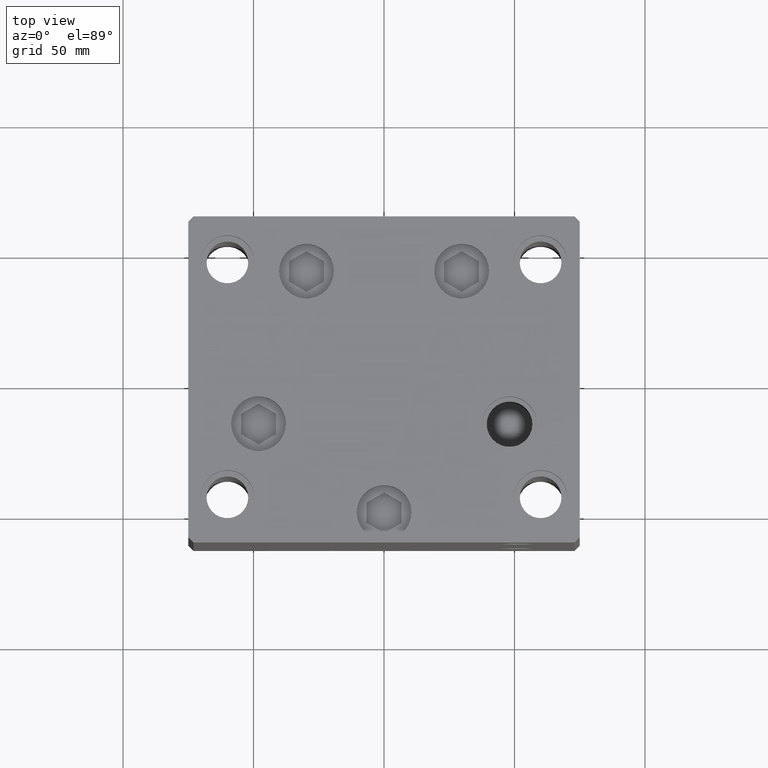
[diagram: clean part render]
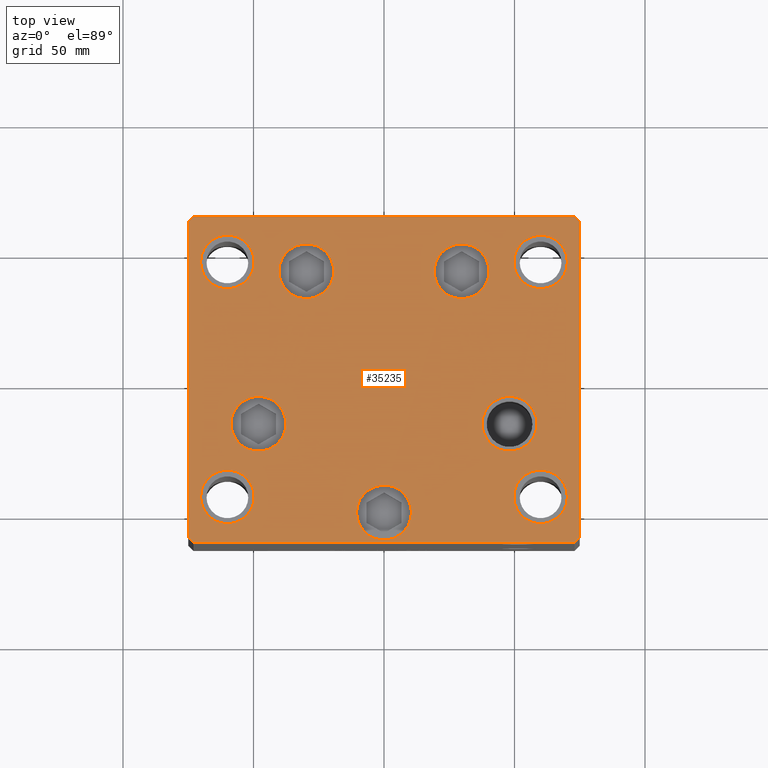
[diagram: same view with one face highlighted and labeled with its STEP entity id]
A machine part, top view. The second image highlights one B-rep face of the part: STEP entity #35235.
In plain terms, the highlighted planar face has unit normal (0, 0, 1).
Its self-contained STEP definition (entity closure, byte-faithful):
#42 = VERTEX_POINT ( 'NONE', #37654 ) ;
#71 = EDGE_LOOP ( 'NONE', ( #12995, #7733 ) ) ;
#338 = DIRECTION ( 'NONE',  ( 1.000000000000000000, 0.000000000000000000, 0.000000000000000000 ) ) ;
#650 = VERTEX_POINT ( 'NONE', #25250 ) ;
#838 = VERTEX_POINT ( 'NONE', #36072 ) ;
#1028 = CARTESIAN_POINT ( 'NONE',  ( 60.00000000000000000, 44.99999999999999289, 0.000000000000000000 ) ) ;
#1353 = AXIS2_PLACEMENT_3D ( 'NONE', #47283, #16511, #20077 ) ;
#1415 = EDGE_CURVE ( 'NONE', #49209, #22351, #33008, .T. ) ;
#1676 = DIRECTION ( 'NONE',  ( 0.000000000000000000, 0.000000000000000000, 1.000000000000000000 ) ) ;
#1791 = CARTESIAN_POINT ( 'NONE',  ( -37.58326112068522207, -17.00000000000000711, 0.000000000000000000 ) ) ;
#1874 = VERTEX_POINT ( 'NONE', #4676 ) ;
#2226 = DIRECTION ( 'NONE',  ( 0.000000000000000000, -1.000000000000000000, 0.000000000000000000 ) ) ;
#3121 = LINE ( 'NONE', #13814, #34086 ) ;
#3736 = DIRECTION ( 'NONE',  ( 0.000000000000000000, 0.000000000000000000, 1.000000000000000000 ) ) ;
#4073 = LINE ( 'NONE', #7902, #12057 ) ;
#4123 = CIRCLE ( 'NONE', #44737, 10.50000000000000178 ) ;
#4152 = CARTESIAN_POINT ( 'NONE',  ( 6.245698675651500444E-15, -51.00000000000000000, 0.000000000000000000 ) ) ;
#4394 = ORIENTED_EDGE ( 'NONE', *, *, #17084, .T. ) ;
#4676 = CARTESIAN_POINT ( 'NONE',  ( 49.75000000000000000, -44.99999999999999289, 0.000000000000000000 ) ) ;
#4681 = ORIENTED_EDGE ( 'NONE', *, *, #34577, .T. ) ;
#4755 = CARTESIAN_POINT ( 'NONE',  ( -29.73102073172060500, 41.43749999999998579, 0.000000000000000000 ) ) ;
#5249 = CARTESIAN_POINT ( 'NONE',  ( -75.00000000000001421, -60.50000000000001421, 0.000000000000000000 ) ) ;
#5288 = VERTEX_POINT ( 'NONE', #39884 ) ;
#5386 = VERTEX_POINT ( 'NONE', #49020 ) ;
#5403 = PLANE ( 'NONE',  #35171 ) ;
#5420 = EDGE_LOOP ( 'NONE', ( #12443, #18690 ) ) ;
#5508 = VERTEX_POINT ( 'NONE', #20759 ) ;
#5649 = DIRECTION ( 'NONE',  ( -0.000000000000000000, 0.000000000000000000, 1.000000000000000000 ) ) ;
#5900 = DIRECTION ( 'NONE',  ( 1.000000000000000000, 0.000000000000000000, 0.000000000000000000 ) ) ;
#6174 = DIRECTION ( 'NONE',  ( 0.000000000000000000, 0.000000000000000000, 1.000000000000000000 ) ) ;
#6183 = CARTESIAN_POINT ( 'NONE',  ( 48.08326112068522207, -16.99999999999999645, 0.000000000000000000 ) ) ;
#6674 = CIRCLE ( 'NONE', #41586, 10.50000000000000000 ) ;
#6825 = DIRECTION ( 'NONE',  ( -0.7071067811865500152, 0.7071067811865451302, 0.000000000000000000 ) ) ;
#6851 = LINE ( 'NONE', #29980, #39295 ) ;
#6867 = CARTESIAN_POINT ( 'NONE',  ( 10.50000000000000711, -51.00000000000000000, 0.000000000000000000 ) ) ;
#6946 = EDGE_CURVE ( 'NONE', #39628, #45878, #6674, .T. ) ;
#7188 = CARTESIAN_POINT ( 'NONE',  ( -29.73102073172060500, 41.43749999999998579, 0.000000000000000000 ) ) ;
#7539 = EDGE_CURVE ( 'NONE', #40012, #11205, #4123, .T. ) ;
#7644 = DIRECTION ( 'NONE',  ( 0.7071067811865463515, 0.7071067811865487940, 0.000000000000000000 ) ) ;
#7733 = ORIENTED_EDGE ( 'NONE', *, *, #7739, .T. ) ;
#7739 = EDGE_CURVE ( 'NONE', #11205, #40012, #15495, .T. ) ;
#7833 = EDGE_LOOP ( 'NONE', ( #16808, #17600, #8575, #35605, #40416, #46773, #41564, #9743 ) ) ;
#7902 = CARTESIAN_POINT ( 'NONE',  ( -75.00000000000001421, -60.50000000000001421, 0.000000000000000000 ) ) ;
#8086 = CARTESIAN_POINT ( 'NONE',  ( 19.23102073172059434, 41.43749999999999289, 0.000000000000000000 ) ) ;
#8532 = CARTESIAN_POINT ( 'NONE',  ( -48.08326112068522207, -17.00000000000000711, 0.000000000000000000 ) ) ;
#8575 = ORIENTED_EDGE ( 'NONE', *, *, #14899, .T. ) ;
#8835 = ORIENTED_EDGE ( 'NONE', *, *, #48959, .F. ) ;
#9234 = FACE_BOUND ( 'NONE', #43058, .T. ) ;
#9239 = VERTEX_POINT ( 'NONE', #5249 ) ;
#9740 = DIRECTION ( 'NONE',  ( 1.000000000000000000, 9.505334114941407284E-17, 0.000000000000000000 ) ) ;
#9743 = ORIENTED_EDGE ( 'NONE', *, *, #17576, .T. ) ;
#9858 = CARTESIAN_POINT ( 'NONE',  ( -75.00000000000001421, 60.49999999999997158, 0.000000000000000000 ) ) ;
#10426 = DIRECTION ( 'NONE',  ( -6.881547673296424104E-16, 1.000000000000000000, 0.000000000000000000 ) ) ;
#10796 = DIRECTION ( 'NONE',  ( 0.000000000000000000, -0.000000000000000000, -1.000000000000000000 ) ) ;
#11205 = VERTEX_POINT ( 'NONE', #43612 ) ;
#11773 = CARTESIAN_POINT ( 'NONE',  ( 72.99999999999992895, 62.50000000000001421, 0.000000000000000000 ) ) ;
#12020 = CARTESIAN_POINT ( 'NONE',  ( -73.00000000000001421, 62.49999999999998579, 0.000000000000000000 ) ) ;
#12057 = VECTOR ( 'NONE', #39159, 1000.000000000000114 ) ;
#12297 = EDGE_LOOP ( 'NONE', ( #31429, #28412 ) ) ;
#12366 = ORIENTED_EDGE ( 'NONE', *, *, #46403, .T. ) ;
#12443 = ORIENTED_EDGE ( 'NONE', *, *, #30276, .F. ) ;
#12798 = FACE_BOUND ( 'NONE', #28529, .T. ) ;
#12894 = VERTEX_POINT ( 'NONE', #20682 ) ;
#12995 = ORIENTED_EDGE ( 'NONE', *, *, #7539, .T. ) ;
#13048 = FACE_OUTER_BOUND ( 'NONE', #7833, .T. ) ;
#13096 = CIRCLE ( 'NONE', #25278, 10.24999999999999467 ) ;
#13503 = CARTESIAN_POINT ( 'NONE',  ( -10.49999999999999289, -51.00000000000000000, 0.000000000000000000 ) ) ;
#13814 = CARTESIAN_POINT ( 'NONE',  ( -73.00000000000001421, -62.50000000000002842, 0.000000000000000000 ) ) ;
#13887 = AXIS2_PLACEMENT_3D ( 'NONE', #30687, #3736, #30934 ) ;
#14851 = AXIS2_PLACEMENT_3D ( 'NONE', #28286, #36925, #5900 ) ;
#14899 = EDGE_CURVE ( 'NONE', #24366, #12894, #46792, .T. ) ;
#15151 = CARTESIAN_POINT ( 'NONE',  ( 70.25000000000000000, 44.99999999999999289, 0.000000000000000000 ) ) ;
#15343 = DIRECTION ( 'NONE',  ( -1.000000000000000000, -1.901066822988282689E-16, 0.000000000000000000 ) ) ;
#15424 = EDGE_CURVE ( 'NONE', #22351, #15426, #36966, .T. ) ;
#15426 = VERTEX_POINT ( 'NONE', #12020 ) ;
#15495 = CIRCLE ( 'NONE', #17113, 10.50000000000000178 ) ;
#15922 = CIRCLE ( 'NONE', #42709, 10.50000000000000178 ) ;
#16220 = DIRECTION ( 'NONE',  ( 1.000000000000000000, 0.000000000000000000, 0.000000000000000000 ) ) ;
#16257 = AXIS2_PLACEMENT_3D ( 'NONE', #35001, #46701, #23061 ) ;
#16511 = DIRECTION ( 'NONE',  ( 0.000000000000000000, 0.000000000000000000, 1.000000000000000000 ) ) ;
#16808 = ORIENTED_EDGE ( 'NONE', *, *, #21241, .T. ) ;
#17084 = EDGE_CURVE ( 'NONE', #37632, #650, #32858, .T. ) ;
#17113 = AXIS2_PLACEMENT_3D ( 'NONE', #29859, #10796, #49173 ) ;
#17266 = ORIENTED_EDGE ( 'NONE', *, *, #25407, .T. ) ;
#17361 = FACE_BOUND ( 'NONE', #30167, .T. ) ;
#17384 = DIRECTION ( 'NONE',  ( 1.000000000000000000, 0.000000000000000000, 0.000000000000000000 ) ) ;
#17576 = EDGE_CURVE ( 'NONE', #40822, #9239, #25114, .T. ) ;
#17600 = ORIENTED_EDGE ( 'NONE', *, *, #23005, .T. ) ;
#17620 = DIRECTION ( 'NONE',  ( 0.000000000000000000, 0.000000000000000000, 1.000000000000000000 ) ) ;
#18054 = LINE ( 'NONE', #33057, #49649 ) ;
#18395 = CIRCLE ( 'NONE', #28936, 10.25000000000000178 ) ;
#18463 = ORIENTED_EDGE ( 'NONE', *, *, #6946, .T. ) ;
#18690 = ORIENTED_EDGE ( 'NONE', *, *, #46860, .F. ) ;
#18698 = AXIS2_PLACEMENT_3D ( 'NONE', #8532, #24032, #39542 ) ;
#19087 = AXIS2_PLACEMENT_3D ( 'NONE', #4755, #20273, #16220 ) ;
#19247 = DIRECTION ( 'NONE',  ( 1.000000000000000000, 0.000000000000000000, 0.000000000000000000 ) ) ;
#19288 = ORIENTED_EDGE ( 'NONE', *, *, #35479, .F. ) ;
#19611 = CARTESIAN_POINT ( 'NONE',  ( -60.00000000000000000, 45.00000000000000000, 0.000000000000000000 ) ) ;
#19668 = DIRECTION ( 'NONE',  ( 0.000000000000000000, -0.000000000000000000, -1.000000000000000000 ) ) ;
#19828 = EDGE_CURVE ( 'NONE', #5386, #838, #31425, .T. ) ;
#20077 = DIRECTION ( 'NONE',  ( 1.000000000000000000, 0.000000000000000000, 0.000000000000000000 ) ) ;
#20273 = DIRECTION ( 'NONE',  ( 0.000000000000000000, -0.000000000000000000, -1.000000000000000000 ) ) ;
#20275 = AXIS2_PLACEMENT_3D ( 'NONE', #19611, #35609, #23665 ) ;
#20359 = VERTEX_POINT ( 'NONE', #35269 ) ;
#20642 = VERTEX_POINT ( 'NONE', #15151 ) ;
#20672 = CARTESIAN_POINT ( 'NONE',  ( 0.000000000000000000, 0.000000000000000000, 0.000000000000000000 ) ) ;
#20682 = CARTESIAN_POINT ( 'NONE',  ( 75.00000000000001421, -60.50000000000000711, 0.000000000000000000 ) ) ;
#20755 = EDGE_LOOP ( 'NONE', ( #4394, #48530 ) ) ;
#20759 = CARTESIAN_POINT ( 'NONE',  ( 37.58326112068522207, -16.99999999999999645, 0.000000000000000000 ) ) ;
#21241 = EDGE_CURVE ( 'NONE', #9239, #23282, #4073, .T. ) ;
#21685 = DIRECTION ( 'NONE',  ( 1.000000000000000000, 0.000000000000000000, 0.000000000000000000 ) ) ;
#21702 = AXIS2_PLACEMENT_3D ( 'NONE', #47464, #1676, #47715 ) ;
#22178 = AXIS2_PLACEMENT_3D ( 'NONE', #1028, #32050, #47561 ) ;
#22351 = VERTEX_POINT ( 'NONE', #24392 ) ;
#22867 = DIRECTION ( 'NONE',  ( 0.000000000000000000, -0.000000000000000000, -1.000000000000000000 ) ) ;
#22901 = DIRECTION ( 'NONE',  ( 0.000000000000000000, 0.000000000000000000, 1.000000000000000000 ) ) ;
#23005 = EDGE_CURVE ( 'NONE', #23282, #24366, #3121, .T. ) ;
#23061 = DIRECTION ( 'NONE',  ( 1.000000000000000000, 0.000000000000000000, 0.000000000000000000 ) ) ;
#23282 = VERTEX_POINT ( 'NONE', #43984 ) ;
#23292 = CIRCLE ( 'NONE', #1353, 10.24999999999999467 ) ;
#23665 = DIRECTION ( 'NONE',  ( 1.000000000000000000, 0.000000000000000000, 0.000000000000000000 ) ) ;
#23885 = EDGE_CURVE ( 'NONE', #838, #5386, #36529, .T. ) ;
#23970 = AXIS2_PLACEMENT_3D ( 'NONE', #7188, #27500, #26762 ) ;
#24032 = DIRECTION ( 'NONE',  ( 0.000000000000000000, -0.000000000000000000, -1.000000000000000000 ) ) ;
#24366 = VERTEX_POINT ( 'NONE', #30919 ) ;
#24392 = CARTESIAN_POINT ( 'NONE',  ( 72.99999999999992895, 62.50000000000001421, 0.000000000000000000 ) ) ;
#24565 = EDGE_CURVE ( 'NONE', #27314, #44739, #41410, .T. ) ;
#25114 = LINE ( 'NONE', #9858, #36929 ) ;
#25250 = CARTESIAN_POINT ( 'NONE',  ( -19.23102073172060145, 41.43749999999998579, 0.000000000000000000 ) ) ;
#25278 = AXIS2_PLACEMENT_3D ( 'NONE', #45074, #6174, #21685 ) ;
#25407 = EDGE_CURVE ( 'NONE', #5508, #5288, #39020, .T. ) ;
#26069 = CARTESIAN_POINT ( 'NONE',  ( 70.25000000000000000, -44.99999999999999289, 0.000000000000000000 ) ) ;
#26141 = CARTESIAN_POINT ( 'NONE',  ( 74.99999999999992895, 60.50000000000002842, 0.000000000000000000 ) ) ;
#26762 = DIRECTION ( 'NONE',  ( 1.000000000000000000, 0.000000000000000000, 0.000000000000000000 ) ) ;
#26954 = CARTESIAN_POINT ( 'NONE',  ( 73.00000000000001421, -62.50000000000001421, 0.000000000000000000 ) ) ;
#27314 = VERTEX_POINT ( 'NONE', #30255 ) ;
#27331 = EDGE_CURVE ( 'NONE', #12894, #49209, #18054, .T. ) ;
#27500 = DIRECTION ( 'NONE',  ( 0.000000000000000000, -0.000000000000000000, -1.000000000000000000 ) ) ;
#27846 = EDGE_CURVE ( 'NONE', #1874, #31433, #13096, .T. ) ;
#28286 = CARTESIAN_POINT ( 'NONE',  ( 6.245698675651500444E-15, -51.00000000000000000, 0.000000000000000000 ) ) ;
#28412 = ORIENTED_EDGE ( 'NONE', *, *, #27846, .F. ) ;
#28529 = EDGE_LOOP ( 'NONE', ( #4681, #18463 ) ) ;
#28550 = FACE_BOUND ( 'NONE', #5420, .T. ) ;
#28690 = CIRCLE ( 'NONE', #31141, 10.24999999999999467 ) ;
#28936 = AXIS2_PLACEMENT_3D ( 'NONE', #49842, #22901, #34087 ) ;
#29706 = CIRCLE ( 'NONE', #37862, 10.50000000000000178 ) ;
#29859 = CARTESIAN_POINT ( 'NONE',  ( 29.73102073172059789, 41.43749999999999289, 0.000000000000000000 ) ) ;
#29980 = CARTESIAN_POINT ( 'NONE',  ( -73.00000000000001421, 62.49999999999998579, 0.000000000000000000 ) ) ;
#30167 = EDGE_LOOP ( 'NONE', ( #39540, #37014 ) ) ;
#30255 = CARTESIAN_POINT ( 'NONE',  ( -58.58326112068522207, -17.00000000000000711, 0.000000000000000000 ) ) ;
#30276 = EDGE_CURVE ( 'NONE', #20359, #46107, #40676, .T. ) ;
#30687 = CARTESIAN_POINT ( 'NONE',  ( -59.99999999999999289, -45.00000000000000000, 0.000000000000000000 ) ) ;
#30735 = EDGE_LOOP ( 'NONE', ( #8835, #19288 ) ) ;
#30919 = CARTESIAN_POINT ( 'NONE',  ( 73.00000000000001421, -62.50000000000001421, 0.000000000000000000 ) ) ;
#30934 = DIRECTION ( 'NONE',  ( 1.000000000000000000, 0.000000000000000000, 0.000000000000000000 ) ) ;
#31141 = AXIS2_PLACEMENT_3D ( 'NONE', #36942, #17620, #48625 ) ;
#31425 = CIRCLE ( 'NONE', #21702, 10.25000000000000178 ) ;
#31429 = ORIENTED_EDGE ( 'NONE', *, *, #36161, .F. ) ;
#31433 = VERTEX_POINT ( 'NONE', #26069 ) ;
#32050 = DIRECTION ( 'NONE',  ( 0.000000000000000000, 0.000000000000000000, 1.000000000000000000 ) ) ;
#32719 = CIRCLE ( 'NONE', #22178, 10.24999999999999467 ) ;
#32858 = CIRCLE ( 'NONE', #19087, 10.50000000000000178 ) ;
#33008 = LINE ( 'NONE', #26141, #41190 ) ;
#33057 = CARTESIAN_POINT ( 'NONE',  ( 75.00000000000001421, -60.50000000000000711, 0.000000000000000000 ) ) ;
#33112 = FACE_BOUND ( 'NONE', #30735, .T. ) ;
#34086 = VECTOR ( 'NONE', #9740, 1000.000000000000000 ) ;
#34087 = DIRECTION ( 'NONE',  ( 1.000000000000000000, 0.000000000000000000, 0.000000000000000000 ) ) ;
#34577 = EDGE_CURVE ( 'NONE', #45878, #39628, #36750, .T. ) ;
#35001 = CARTESIAN_POINT ( 'NONE',  ( 48.08326112068522207, -16.99999999999999645, 0.000000000000000000 ) ) ;
#35171 = AXIS2_PLACEMENT_3D ( 'NONE', #20672, #5649, #44067 ) ;
#35235 = ADVANCED_FACE ( 'NONE', ( #46385, #36933, #9234, #12798, #47870, #36419, #28550, #17361, #33112, #13048 ), #5403, .T. ) ;
#35269 = CARTESIAN_POINT ( 'NONE',  ( -49.74999999999998579, -45.00000000000000000, 0.000000000000000000 ) ) ;
#35479 = EDGE_CURVE ( 'NONE', #42, #20642, #32719, .T. ) ;
#35605 = ORIENTED_EDGE ( 'NONE', *, *, #27331, .T. ) ;
#35609 = DIRECTION ( 'NONE',  ( 0.000000000000000000, 0.000000000000000000, 1.000000000000000000 ) ) ;
#36072 = CARTESIAN_POINT ( 'NONE',  ( -49.74999999999999289, 45.00000000000000000, 0.000000000000000000 ) ) ;
#36161 = EDGE_CURVE ( 'NONE', #31433, #1874, #28690, .T. ) ;
#36419 = FACE_BOUND ( 'NONE', #12297, .T. ) ;
#36529 = CIRCLE ( 'NONE', #20275, 10.25000000000000178 ) ;
#36750 = CIRCLE ( 'NONE', #14851, 10.50000000000000000 ) ;
#36925 = DIRECTION ( 'NONE',  ( 0.000000000000000000, -0.000000000000000000, -1.000000000000000000 ) ) ;
#36929 = VECTOR ( 'NONE', #2226, 1000.000000000000000 ) ;
#36933 = FACE_BOUND ( 'NONE', #71, .T. ) ;
#36942 = CARTESIAN_POINT ( 'NONE',  ( 60.00000000000000000, -44.99999999999999289, 0.000000000000000000 ) ) ;
#36966 = LINE ( 'NONE', #11773, #37707 ) ;
#37014 = ORIENTED_EDGE ( 'NONE', *, *, #19828, .F. ) ;
#37632 = VERTEX_POINT ( 'NONE', #40979 ) ;
#37654 = CARTESIAN_POINT ( 'NONE',  ( 49.75000000000000000, 44.99999999999999289, 0.000000000000000000 ) ) ;
#37707 = VECTOR ( 'NONE', #15343, 1000.000000000000000 ) ;
#37862 = AXIS2_PLACEMENT_3D ( 'NONE', #43371, #38572, #19247 ) ;
#37979 = EDGE_CURVE ( 'NONE', #15426, #40822, #6851, .T. ) ;
#38380 = DIRECTION ( 'NONE',  ( 1.000000000000000000, 0.000000000000000000, 0.000000000000000000 ) ) ;
#38500 = ORIENTED_EDGE ( 'NONE', *, *, #43083, .T. ) ;
#38572 = DIRECTION ( 'NONE',  ( 0.000000000000000000, -0.000000000000000000, -1.000000000000000000 ) ) ;
#39020 = CIRCLE ( 'NONE', #16257, 10.50000000000000178 ) ;
#39159 = DIRECTION ( 'NONE',  ( 0.7071067811865451302, -0.7071067811865500152, 0.000000000000000000 ) ) ;
#39295 = VECTOR ( 'NONE', #45498, 1000.000000000000114 ) ;
#39540 = ORIENTED_EDGE ( 'NONE', *, *, #23885, .F. ) ;
#39542 = DIRECTION ( 'NONE',  ( 1.000000000000000000, 0.000000000000000000, 0.000000000000000000 ) ) ;
#39628 = VERTEX_POINT ( 'NONE', #6867 ) ;
#39884 = CARTESIAN_POINT ( 'NONE',  ( 58.58326112068522207, -16.99999999999999645, 0.000000000000000000 ) ) ;
#40012 = VERTEX_POINT ( 'NONE', #8086 ) ;
#40182 = ORIENTED_EDGE ( 'NONE', *, *, #24565, .T. ) ;
#40416 = ORIENTED_EDGE ( 'NONE', *, *, #1415, .T. ) ;
#40676 = CIRCLE ( 'NONE', #13887, 10.25000000000000178 ) ;
#40822 = VERTEX_POINT ( 'NONE', #48545 ) ;
#40979 = CARTESIAN_POINT ( 'NONE',  ( -40.23102073172060500, 41.43749999999998579, 0.000000000000000000 ) ) ;
#41190 = VECTOR ( 'NONE', #6825, 1000.000000000000114 ) ;
#41410 = CIRCLE ( 'NONE', #18698, 10.50000000000000178 ) ;
#41564 = ORIENTED_EDGE ( 'NONE', *, *, #37979, .T. ) ;
#41586 = AXIS2_PLACEMENT_3D ( 'NONE', #4152, #19668, #338 ) ;
#42709 = AXIS2_PLACEMENT_3D ( 'NONE', #6183, #48389, #17384 ) ;
#43058 = EDGE_LOOP ( 'NONE', ( #17266, #12366 ) ) ;
#43083 = EDGE_CURVE ( 'NONE', #44739, #27314, #29706, .T. ) ;
#43092 = CARTESIAN_POINT ( 'NONE',  ( 74.99999999999992895, 60.50000000000002842, 0.000000000000000000 ) ) ;
#43371 = CARTESIAN_POINT ( 'NONE',  ( -48.08326112068522207, -17.00000000000000711, 0.000000000000000000 ) ) ;
#43609 = EDGE_LOOP ( 'NONE', ( #40182, #38500 ) ) ;
#43612 = CARTESIAN_POINT ( 'NONE',  ( 40.23102073172059789, 41.43749999999999289, 0.000000000000000000 ) ) ;
#43984 = CARTESIAN_POINT ( 'NONE',  ( -73.00000000000001421, -62.50000000000002842, 0.000000000000000000 ) ) ;
#44067 = DIRECTION ( 'NONE',  ( 1.000000000000000000, 0.000000000000000000, 0.000000000000000000 ) ) ;
#44517 = EDGE_CURVE ( 'NONE', #650, #37632, #45910, .T. ) ;
#44698 = CARTESIAN_POINT ( 'NONE',  ( -70.25000000000000000, -45.00000000000000000, 0.000000000000000000 ) ) ;
#44737 = AXIS2_PLACEMENT_3D ( 'NONE', #46755, #22867, #38380 ) ;
#44739 = VERTEX_POINT ( 'NONE', #1791 ) ;
#45074 = CARTESIAN_POINT ( 'NONE',  ( 60.00000000000000000, -44.99999999999999289, 0.000000000000000000 ) ) ;
#45498 = DIRECTION ( 'NONE',  ( -0.7071067811865451302, -0.7071067811865500152, 0.000000000000000000 ) ) ;
#45878 = VERTEX_POINT ( 'NONE', #13503 ) ;
#45910 = CIRCLE ( 'NONE', #23970, 10.50000000000000178 ) ;
#46107 = VERTEX_POINT ( 'NONE', #44698 ) ;
#46385 = FACE_BOUND ( 'NONE', #20755, .T. ) ;
#46403 = EDGE_CURVE ( 'NONE', #5288, #5508, #15922, .T. ) ;
#46701 = DIRECTION ( 'NONE',  ( 0.000000000000000000, -0.000000000000000000, -1.000000000000000000 ) ) ;
#46755 = CARTESIAN_POINT ( 'NONE',  ( 29.73102073172059789, 41.43749999999999289, 0.000000000000000000 ) ) ;
#46773 = ORIENTED_EDGE ( 'NONE', *, *, #15424, .T. ) ;
#46792 = LINE ( 'NONE', #26954, #48205 ) ;
#46860 = EDGE_CURVE ( 'NONE', #46107, #20359, #18395, .T. ) ;
#47283 = CARTESIAN_POINT ( 'NONE',  ( 60.00000000000000000, 44.99999999999999289, 0.000000000000000000 ) ) ;
#47464 = CARTESIAN_POINT ( 'NONE',  ( -60.00000000000000000, 45.00000000000000000, 0.000000000000000000 ) ) ;
#47561 = DIRECTION ( 'NONE',  ( 1.000000000000000000, 0.000000000000000000, 0.000000000000000000 ) ) ;
#47715 = DIRECTION ( 'NONE',  ( 1.000000000000000000, 0.000000000000000000, 0.000000000000000000 ) ) ;
#47870 = FACE_BOUND ( 'NONE', #43609, .T. ) ;
#48205 = VECTOR ( 'NONE', #7644, 1000.000000000000000 ) ;
#48389 = DIRECTION ( 'NONE',  ( 0.000000000000000000, -0.000000000000000000, -1.000000000000000000 ) ) ;
#48530 = ORIENTED_EDGE ( 'NONE', *, *, #44517, .T. ) ;
#48545 = CARTESIAN_POINT ( 'NONE',  ( -75.00000000000001421, 60.49999999999997158, 0.000000000000000000 ) ) ;
#48625 = DIRECTION ( 'NONE',  ( 1.000000000000000000, 0.000000000000000000, 0.000000000000000000 ) ) ;
#48959 = EDGE_CURVE ( 'NONE', #20642, #42, #23292, .T. ) ;
#49020 = CARTESIAN_POINT ( 'NONE',  ( -70.25000000000000000, 45.00000000000000000, 0.000000000000000000 ) ) ;
#49173 = DIRECTION ( 'NONE',  ( 1.000000000000000000, 0.000000000000000000, 0.000000000000000000 ) ) ;
#49209 = VERTEX_POINT ( 'NONE', #43092 ) ;
#49649 = VECTOR ( 'NONE', #10426, 1000.000000000000000 ) ;
#49842 = CARTESIAN_POINT ( 'NONE',  ( -59.99999999999999289, -45.00000000000000000, 0.000000000000000000 ) ) ;